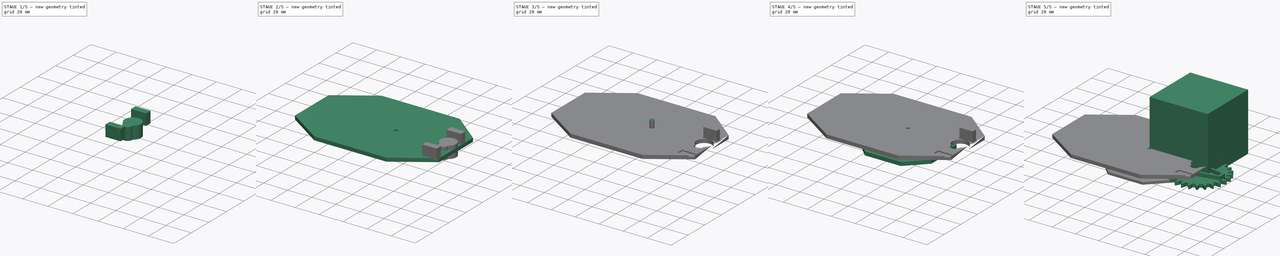
[diagram: build sequence overview — one tinted view per stage of 5, left to right]
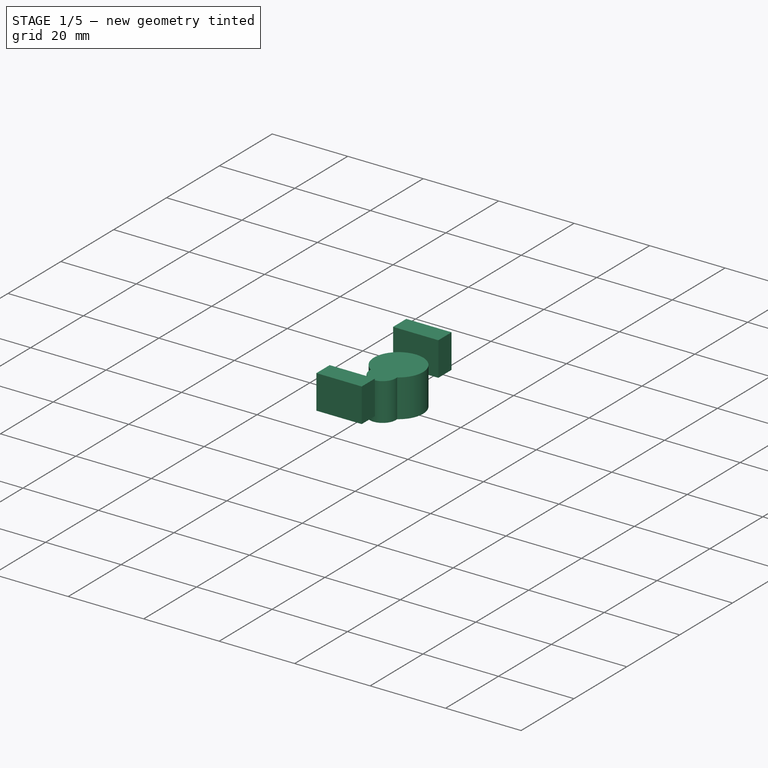
[diagram: stage 1 of 5 — iso view after this stage's code; geometry added in this stage tinted green]
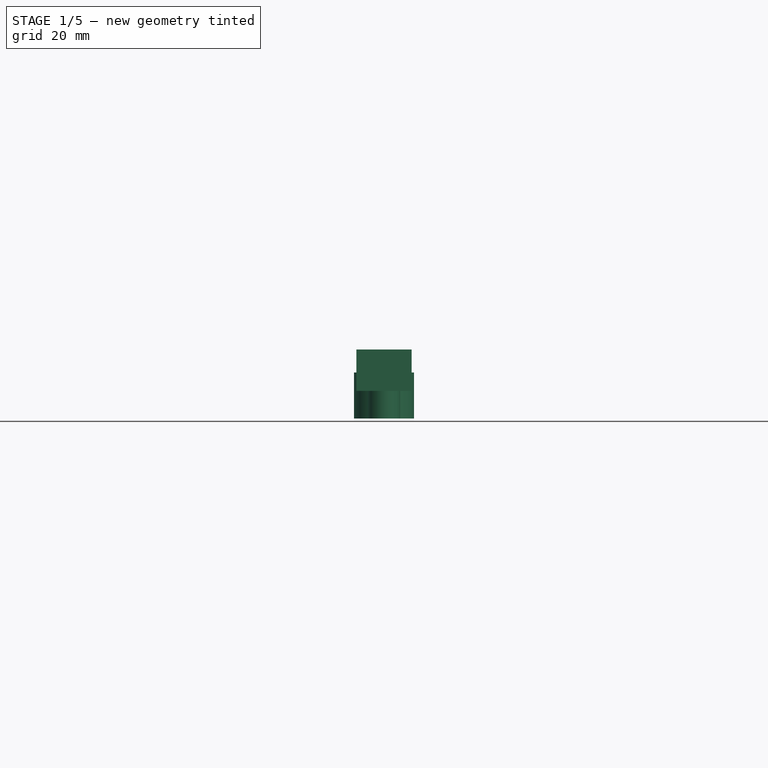
[diagram: stage 1 of 5 — front view after this stage's code; geometry added in this stage tinted green]
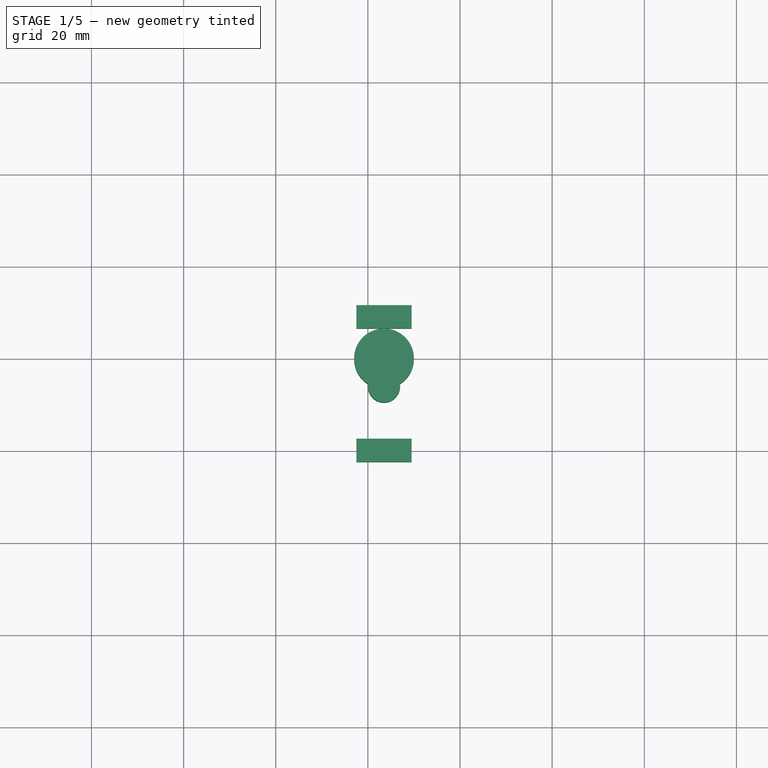
[diagram: stage 1 of 5 — top view after this stage's code; geometry added in this stage tinted green]
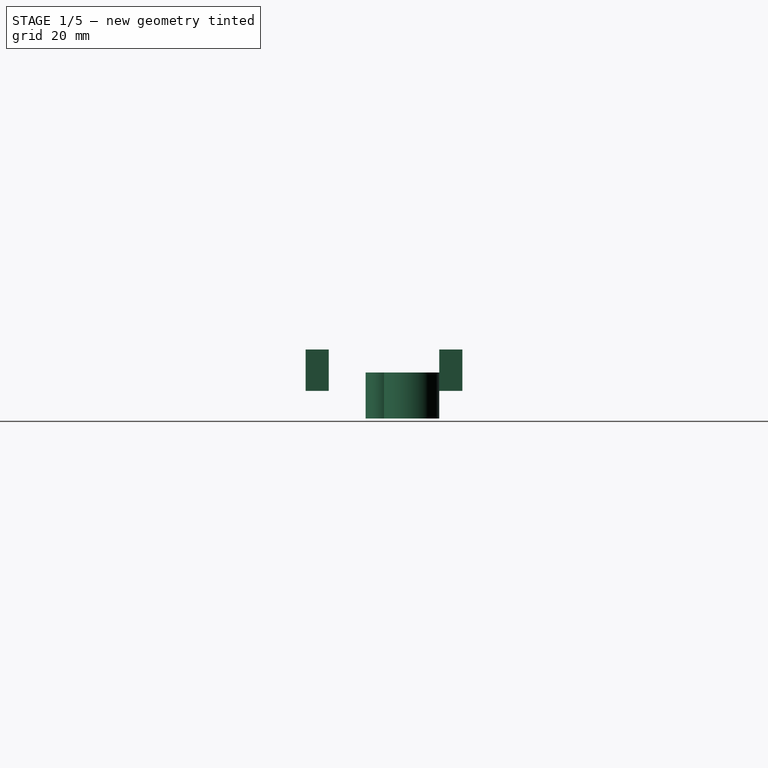
[diagram: stage 1 of 5 — right view after this stage's code; geometry added in this stage tinted green]
FCSTD DOCUMENT  (FreeCAD 0.14R3700 (Git))
Label: case
License: All rights reserved
LicenseURL: http://en.wikipedia.org/wiki/All_rights_reserved
objects: Part::Cylinder×8, Part::Cut×7, Part::MultiFuse×7, Part::Box×5, Sketcher::SketchObject×4, PartDesign::Pad×4, Part::FeaturePython×3, Part::Feature×2, Part::Chamfer×1
note: 45 computed .brp shape members not serialized (recipe doc carries the construction recipe); baked Part::Feature solids carry a one-line shape summary decoded from their .brp

FEATURE [Part::Cylinder] Cylinder006
  Angle = 360
  Height = 10
  Placement = pos=(43.5,0,3) rot=(0,0,1;0rad)
  Radius = 6.5
FEATURE [Part::Cylinder] Cylinder007
  Angle = 360
  Height = 10
  Placement = pos=(43.5,-6,3) rot=(0,0,1;0rad)
  Radius = 3.5
FEATURE [Part::MultiFuse] Fusion005
  Shapes = -> [Cylinder006,Cylinder007]
FEATURE [Part::Box] Box002  label="Cube002"
  Height = 9
  Length = 12
  Placement = pos=(37.5,6.5,9) rot=(0,0,1;0rad)
  Width = 5
FEATURE [Part::Box] Box003  label="Cube003"
  Height = 9
  Length = 12
  Placement = pos=(37.5,-22.5,9) rot=(0,0,1;0rad)
  Width = 5
FEATURE [Part::MultiFuse] Fusion006
  Shapes = -> [Box002,Box003]
FEATURE [Part::Box] Box004  label="servo-support"
  Height = 9
  Length = 11
  Placement = pos=(38,7,9) rot=(0,0,1;0rad)
  Width = 4
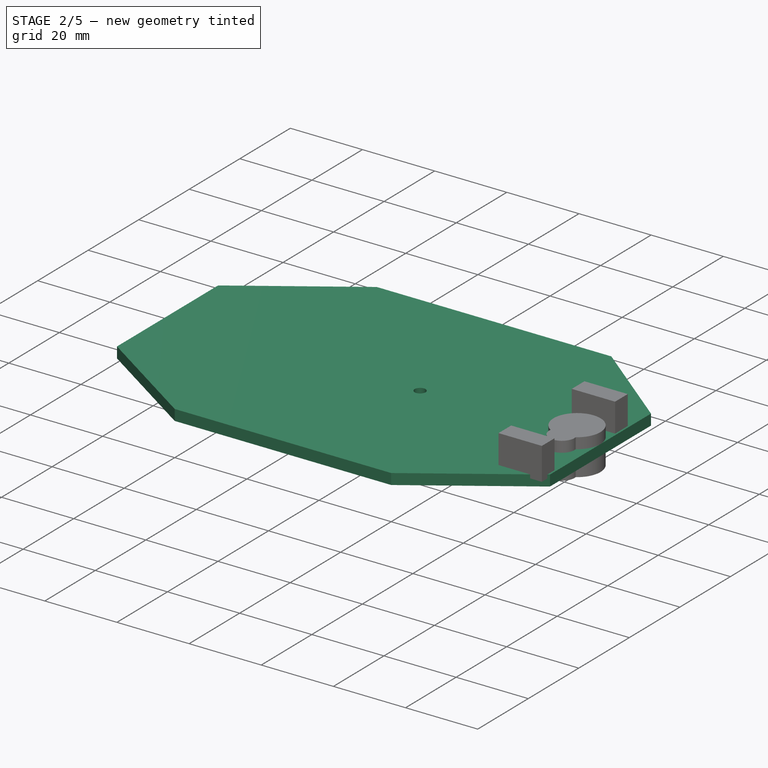
[diagram: stage 2 of 5 — iso view after this stage's code; geometry added in this stage tinted green]
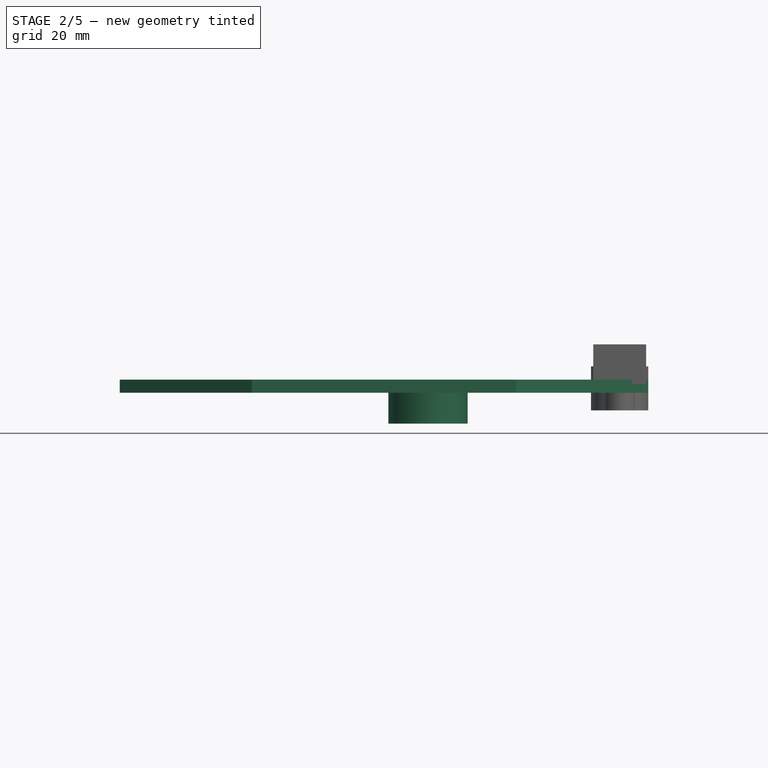
[diagram: stage 2 of 5 — front view after this stage's code; geometry added in this stage tinted green]
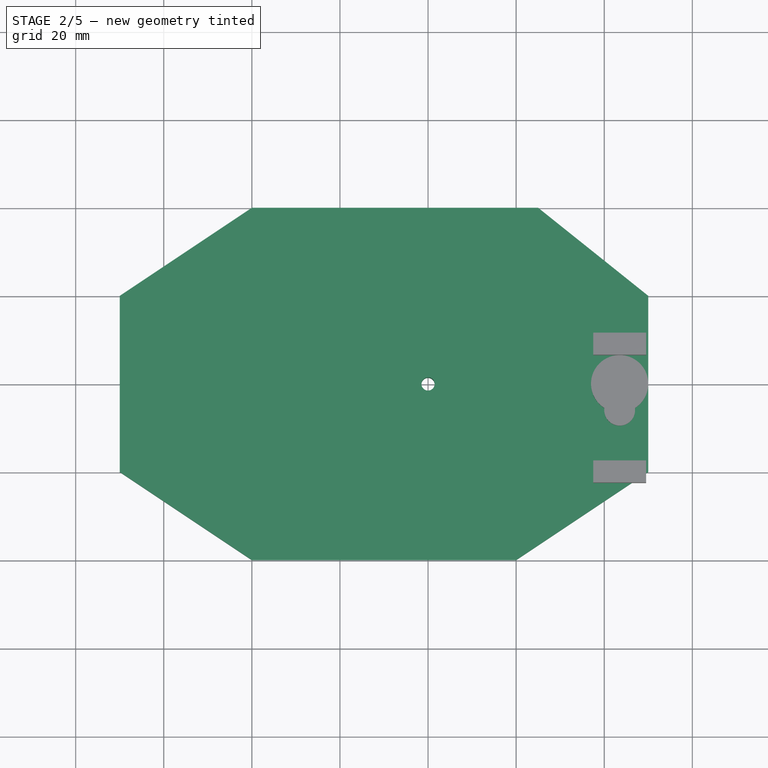
[diagram: stage 2 of 5 — top view after this stage's code; geometry added in this stage tinted green]
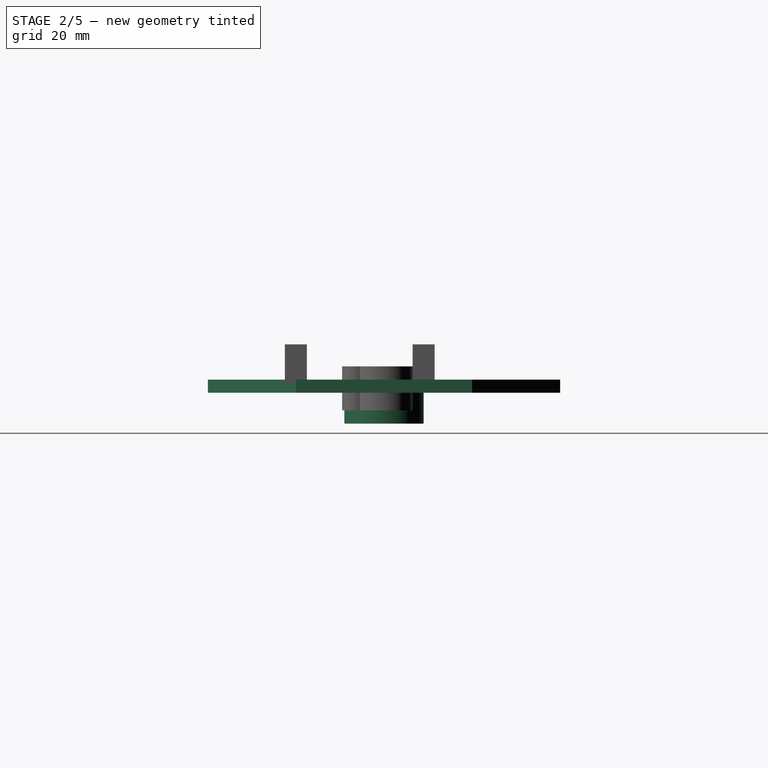
[diagram: stage 2 of 5 — right view after this stage's code; geometry added in this stage tinted green]
FEATURE [Sketcher::SketchObject] Sketch003
  Placement = pos=(-30,0,7) rot=(0,0,1;0rad)
  sketch-geometry (8):
    g0: LineSegment StartX=-40 StartY=20 StartZ=0 EndX=-10 EndY=40 EndZ=0
    g1: LineSegment StartX=-10 StartY=40 StartZ=0 EndX=55 EndY=40 EndZ=0
    g2: LineSegment StartX=55 StartY=40 StartZ=0 EndX=80 EndY=20 EndZ=0
    g3: LineSegment StartX=80 StartY=20 StartZ=0 EndX=80 EndY=-20 EndZ=0
    g4: LineSegment StartX=80 StartY=-20 StartZ=0 EndX=50 EndY=-40 EndZ=0
    g5: LineSegment StartX=50 StartY=-40 StartZ=0 EndX=-10 EndY=-40 EndZ=0
    g6: LineSegment StartX=-10 StartY=-40 StartZ=0 EndX=-40 EndY=-20 EndZ=0
    g7: LineSegment StartX=-40 StartY=-20 StartZ=0 EndX=-40 EndY=20 EndZ=0
  constraints (8):
    c: Coincident(g0,g1)
    c: Coincident(g1,g2)
    c: Coincident(g2,g3)
    c: Coincident(g3,g4)
    c: Coincident(g4,g5)
    c: Coincident(g5,g6)
    c: Coincident(g6,g7)
    c: Coincident(g7,g0)
FEATURE [PartDesign::Pad] Pad003
  Length = 3
  Length2 = 100
  Placement = pos=(-30,0,7) rot=(0,0,1;0rad)
  Sketch = -> Sketch003
  Type = 0
FEATURE [Part::Cylinder] Cylinder001
  Angle = 360
  Height = 9
  Radius = 9
FEATURE [Part::MultiFuse] Fusion003
  Shapes = -> [Cylinder001,Pad003]
FEATURE [Part::Cylinder] Cylinder005
  Angle = 360
  Height = 20
  Placement = pos=(0,0,-4) rot=(0,0,1;0rad)
  Radius = 1.5
FEATURE [Part::Cut] Cut004
  Base = -> Fusion003
  Tool = -> Cylinder005
FEATURE [Part::Box] Box001  label="Cube001"
  Height = 9
  Length = 11
  Placement = pos=(38,7,9) rot=(0,0,1;0rad)
  Width = 4
FEATURE [Part::FeaturePython] Clone001  label="Clone of Cube001"  # Draft clone (typed FeaturePython)
  Objects = -> [Box001]
  Placement = pos=(38,-22,9) rot=(0,0,1;0rad)
  Scale = (1,1,1)
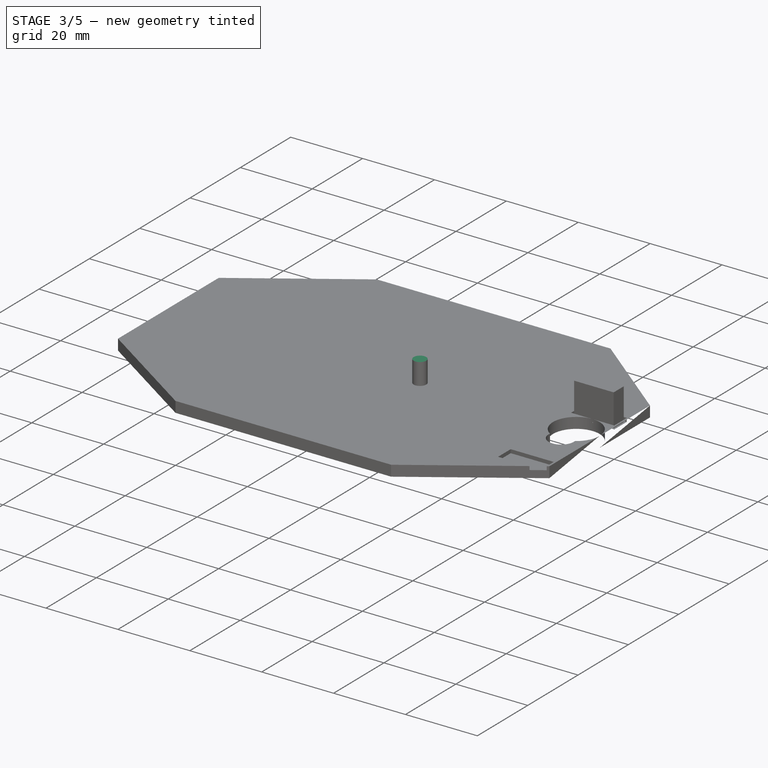
[diagram: stage 3 of 5 — iso view after this stage's code; geometry added in this stage tinted green]
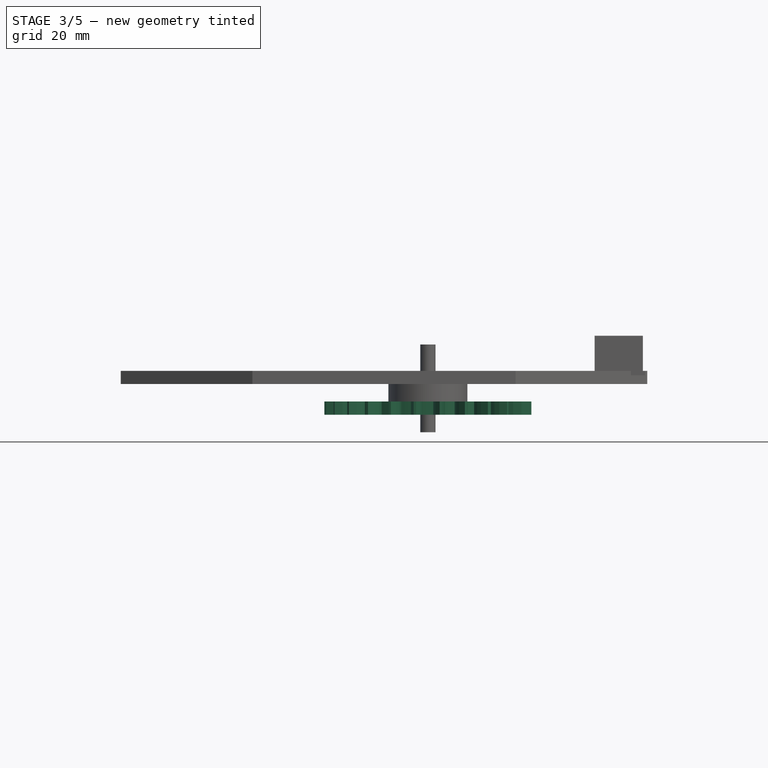
[diagram: stage 3 of 5 — front view after this stage's code; geometry added in this stage tinted green]
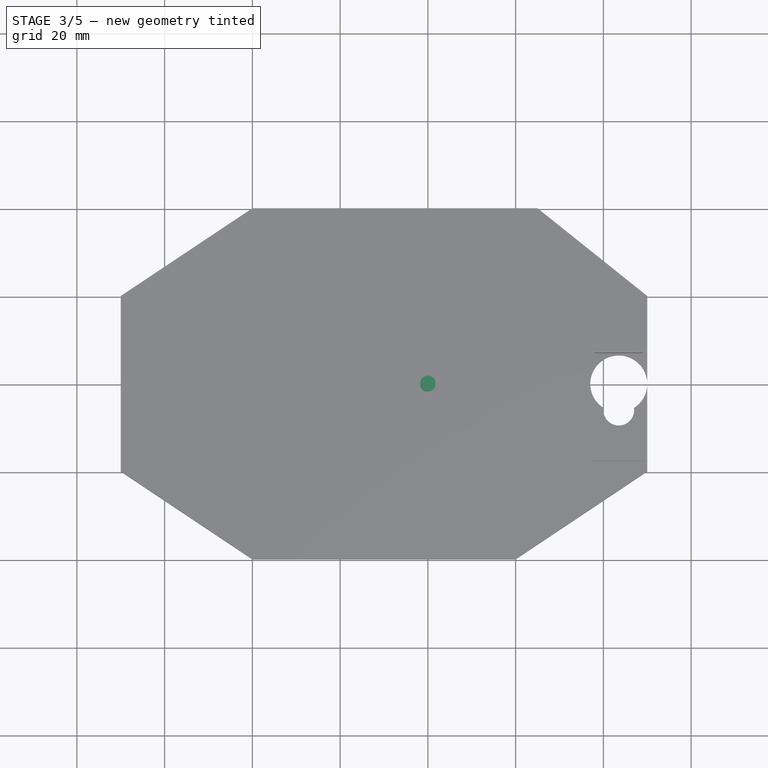
[diagram: stage 3 of 5 — top view after this stage's code; geometry added in this stage tinted green]
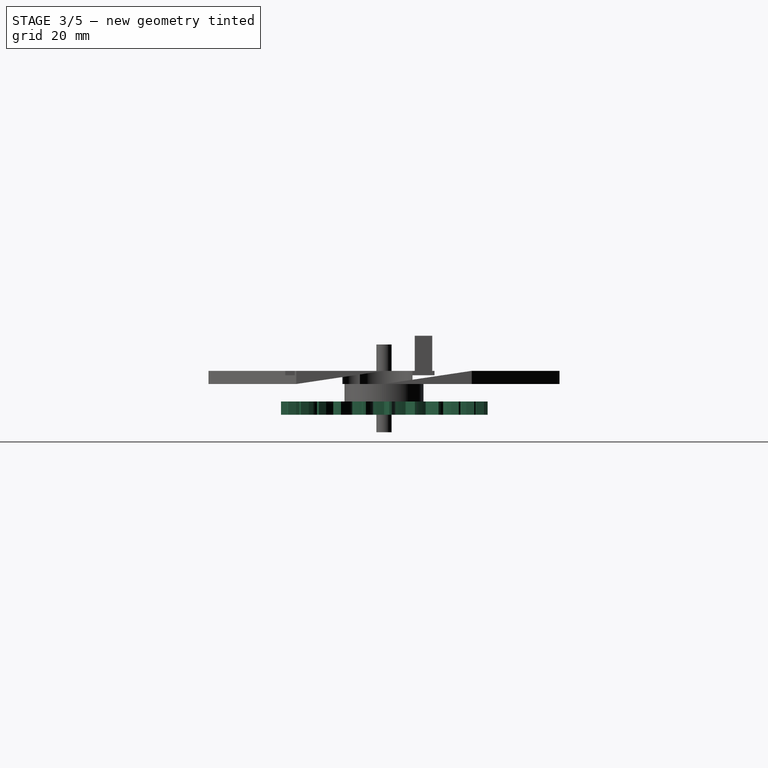
[diagram: stage 3 of 5 — right view after this stage's code; geometry added in this stage tinted green]
FEATURE [Part::FeaturePython] Gear  # WARN: FeaturePython — macro-defined, semantics opaque (R4)
  CenterRadius = 20
  GearHeight = 3
  LevelOfDetail = 3
  Module = 1.75
  NumberTeeth = 25
  PressureAngle = 20
  Verbose = true
FEATURE [Part::Cylinder] Cylinder
  Angle = 360
  Height = 10
  Placement = pos=(0,0,-2) rot=(0,0,1;0rad)
  Radius = 10
FEATURE [Part::Cut] Cut001
  Base = -> Gear
  Tool = -> Cylinder
FEATURE [Part::Cylinder] Cylinder004
  Angle = 360
  Height = 20
  Placement = pos=(0,0,-4) rot=(0,0,1;0rad)
  Radius = 1.75
FEATURE [Part::MultiFuse] Fusion004
  Shapes = -> [Cut004,Box001,Clone001]
FEATURE [Part::Cut] Cut005  label="top-panel"
  Base = -> Fusion004
  Tool = -> Fusion005
FEATURE [Part::Cut] Cut006  label="top-panel001"
  Base = -> Cut005
  Tool = -> Fusion006
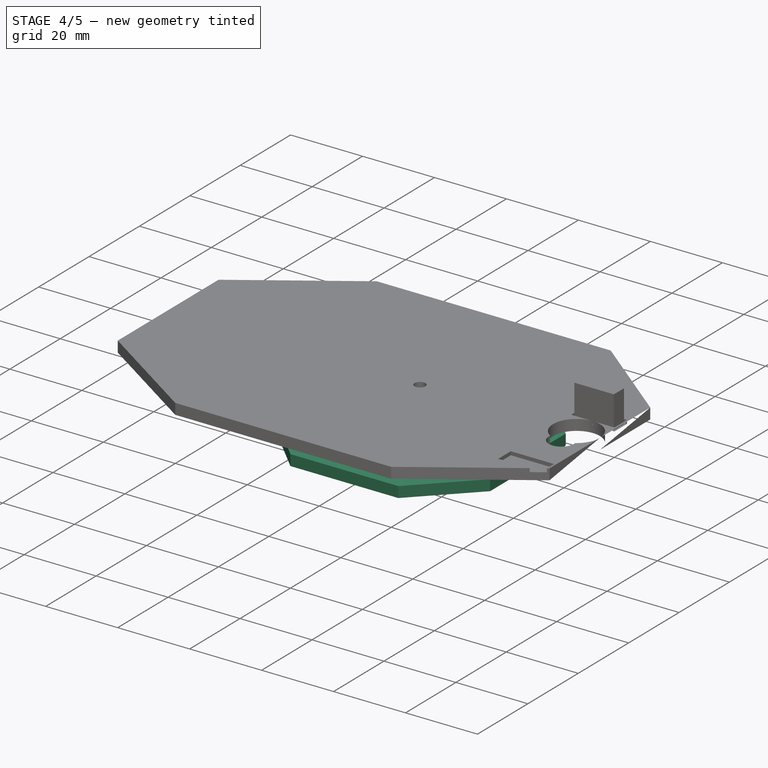
[diagram: stage 4 of 5 — iso view after this stage's code; geometry added in this stage tinted green]
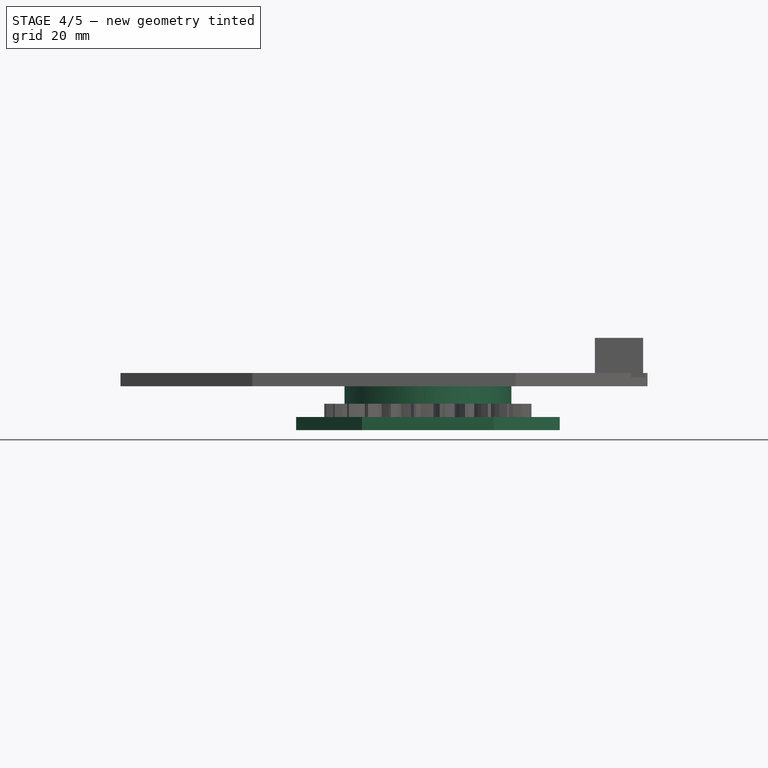
[diagram: stage 4 of 5 — front view after this stage's code; geometry added in this stage tinted green]
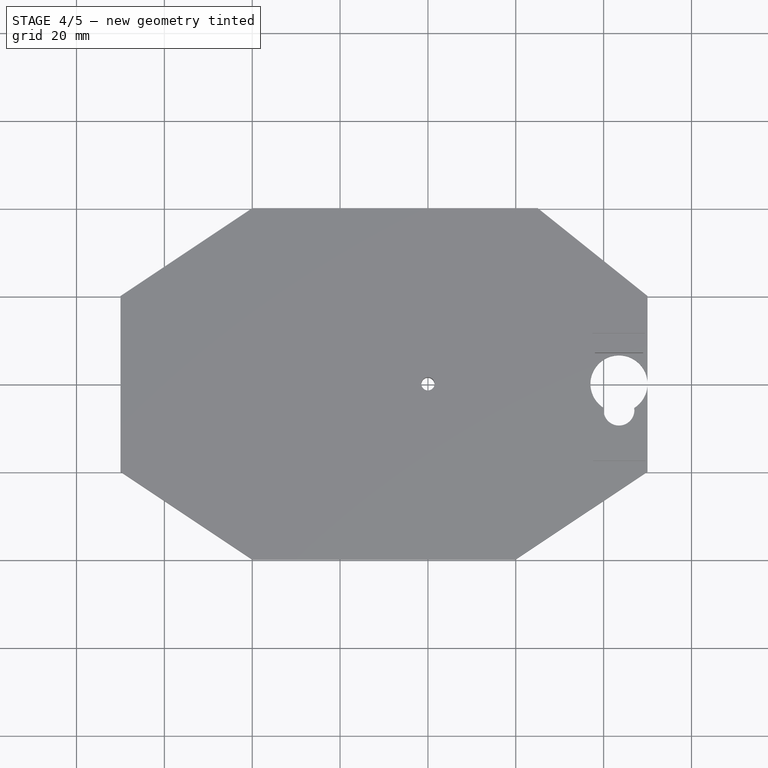
[diagram: stage 4 of 5 — top view after this stage's code; geometry added in this stage tinted green]
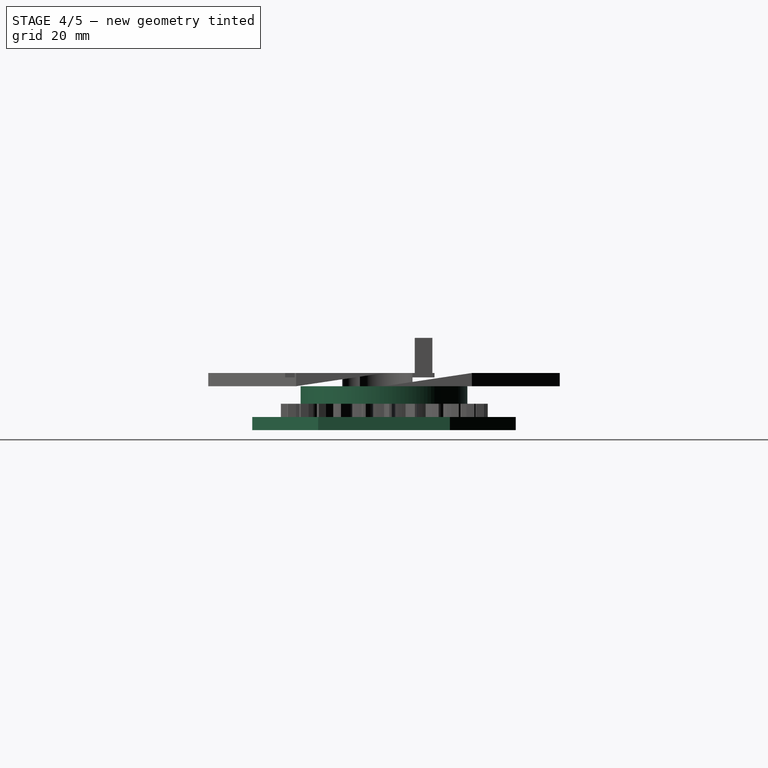
[diagram: stage 4 of 5 — right view after this stage's code; geometry added in this stage tinted green]
FEATURE [Part::Feature] Part__Feature002  label="hxt900"
  Placement = pos=(43.5,-5.5,20) rot=(0.707107,0.707107,0;3.14159rad)
  shape: bbox 12 x 32.69 x 29.96 mm, 44 faces (baked)
FEATURE [Sketcher::SketchObject] Sketch002
  Placement = pos=(0,0,-3) rot=(0,0,1;0rad)
  sketch-geometry (8):
    g0: LineSegment StartX=-15 StartY=30 StartZ=0 EndX=15 EndY=30 EndZ=0
    g1: LineSegment StartX=15 StartY=30 StartZ=0 EndX=30 EndY=15 EndZ=0
    g2: LineSegment StartX=30 StartY=15 StartZ=0 EndX=30 EndY=-15 EndZ=0
    g3: LineSegment StartX=30 StartY=-15 StartZ=0 EndX=15 EndY=-30 EndZ=0
    g4: LineSegment StartX=15 StartY=-30 StartZ=0 EndX=-15 EndY=-30 EndZ=0
    g5: LineSegment StartX=-15 StartY=-30 StartZ=0 EndX=-30 EndY=-15 EndZ=0
    g6: LineSegment StartX=-30 StartY=-15 StartZ=0 EndX=-30 EndY=15 EndZ=0
    g7: LineSegment StartX=-30 StartY=15 StartZ=0 EndX=-15 EndY=30 EndZ=0
  constraints (8):
    c: Coincident(g0,g1)
    c: Coincident(g1,g2)
    c: Coincident(g2,g3)
    c: Coincident(g3,g4)
    c: Coincident(g4,g5)
    c: Coincident(g5,g6)
    c: Coincident(g6,g7)
    c: Coincident(g7,g0)
FEATURE [PartDesign::Pad] Pad002
  Length = 3
  Length2 = 100
  Placement = pos=(0,0,-3) rot=(0,0,1;0rad)
  Sketch = -> Sketch002
  Type = 0
FEATURE [Part::Cylinder] Cylinder002
  Angle = 360
  Height = 7
  Radius = 19
FEATURE [Part::Cylinder] Cylinder003
  Angle = 360
  Height = 7
  Radius = 17
FEATURE [Part::Cut] Cut002
  Base = -> Cylinder002
  Tool = -> Cylinder003
FEATURE [Part::MultiFuse] Fusion001
  Shapes = -> [Pad002,Cut001]
FEATURE [Part::MultiFuse] Fusion002
  Shapes = -> [Fusion001,Cut002]
FEATURE [Part::Cut] Cut003
  Base = -> Fusion002
  Tool = -> Cylinder004
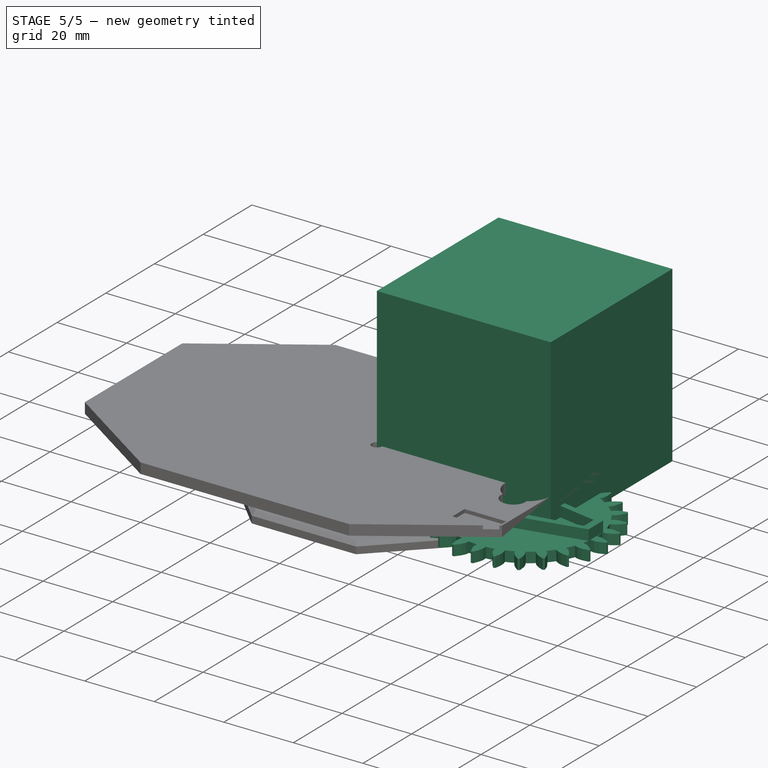
[diagram: stage 5 of 5 — iso view after this stage's code; geometry added in this stage tinted green]
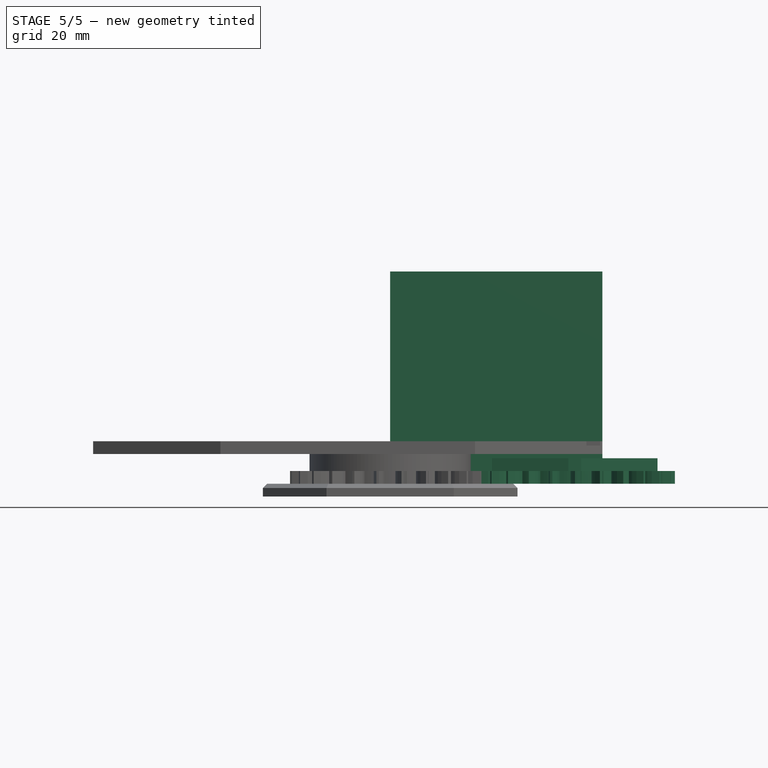
[diagram: stage 5 of 5 — front view after this stage's code; geometry added in this stage tinted green]
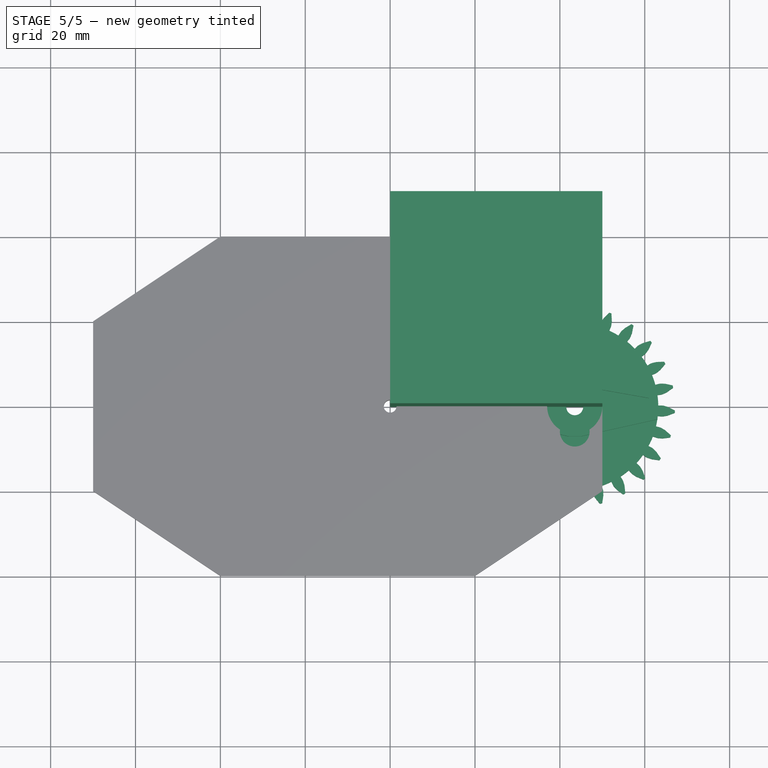
[diagram: stage 5 of 5 — top view after this stage's code; geometry added in this stage tinted green]
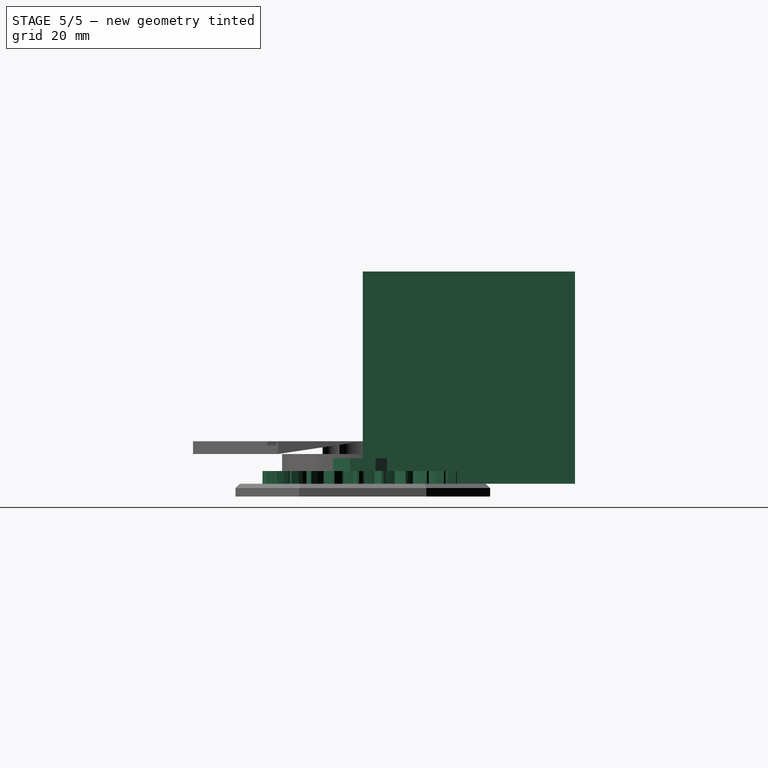
[diagram: stage 5 of 5 — right view after this stage's code; geometry added in this stage tinted green]
FEATURE [Part::Box] Box  label="Cube"
  Height = 50
  Length = 50
  Width = 50
FEATURE [Part::FeaturePython] Clone  label="Clone of Gear"  # Draft clone (typed FeaturePython)
  Objects = -> [Gear]
  Placement = pos=(43.5,0,0) rot=(0,0,1;0.139626rad)
  Scale = (1,1,1)
FEATURE [Part::Feature] Part__Feature  label="servo-arm"
  Placement = pos=(43.5,0,4) rot=(0,0,1;0rad)
  shape: bbox 34 x 8 x 5 mm, 17 faces (baked)
FEATURE [Sketcher::SketchObject] Sketch
  Placement = pos=(0,0,3) rot=(0,0,1;0rad)
  sketch-geometry (8):
    g0: LineSegment StartX=44 StartY=5 StartZ=0 EndX=61 EndY=2 EndZ=0
    g1: LineSegment StartX=61 StartY=2 StartZ=0 EndX=61 EndY=-2 EndZ=0
    g2: LineSegment StartX=61 StartY=-2 StartZ=0 EndX=44 EndY=-5 EndZ=0
    g3: LineSegment StartX=44 StartY=-5 StartZ=0 EndX=43 EndY=-5 EndZ=0
    g4: LineSegment StartX=43 StartY=-5 StartZ=0 EndX=26 EndY=-2 EndZ=0
    g5: LineSegment StartX=26 StartY=-2 StartZ=0 EndX=26 EndY=2 EndZ=0
    g6: LineSegment StartX=26 StartY=2 StartZ=0 EndX=43 EndY=5 EndZ=0
    g7: LineSegment StartX=43 StartY=5 StartZ=0 EndX=44 EndY=5 EndZ=0
  constraints (8):
    c: Coincident(g0,g1)
    c: Coincident(g1,g2)
    c: Coincident(g2,g3)
    c: Coincident(g3,g4)
    c: Coincident(g4,g5)
    c: Coincident(g5,g6)
    c: Coincident(g6,g7)
    c: Coincident(g0,g7)
FEATURE [PartDesign::Pad] Pad
  Length = 10
  Length2 = 100
  Placement = pos=(0,0,3) rot=(0,0,1;0rad)
  Sketch = -> Sketch
  Type = 0
FEATURE [Sketcher::SketchObject] Sketch001
  Placement = pos=(0,0,3) rot=(0,0,1;0rad)
  sketch-geometry (8):
    g0: LineSegment StartX=44 StartY=7 StartZ=0 EndX=63 EndY=3 EndZ=0
    g1: LineSegment StartX=63 StartY=3 StartZ=0 EndX=63 EndY=-3 EndZ=0
    g2: LineSegment StartX=63 StartY=-3 StartZ=0 EndX=45 EndY=-7 EndZ=0
    g3: LineSegment StartX=45 StartY=-7 StartZ=0 EndX=42 EndY=-7 EndZ=0
    g4: LineSegment StartX=42 StartY=-7 StartZ=0 EndX=24 EndY=-3 EndZ=0
    g5: LineSegment StartX=24 StartY=-3 StartZ=0 EndX=24 EndY=3 EndZ=0
    g6: LineSegment StartX=24 StartY=3 StartZ=0 EndX=42 EndY=7 EndZ=0
    g7: LineSegment StartX=42 StartY=7 StartZ=0 EndX=44 EndY=7 EndZ=0
  constraints (8):
    c: Coincident(g0,g1)
    c: Coincident(g1,g2)
    c: Coincident(g2,g3)
    c: Coincident(g3,g4)
    c: Coincident(g4,g5)
    c: Coincident(g5,g6)
    c: Coincident(g6,g7)
    c: Coincident(g7,g0)
FEATURE [PartDesign::Pad] Pad001
  Length = 3
  Length2 = 100
  Placement = pos=(0,0,3) rot=(0,0,1;0rad)
  Sketch = -> Sketch001
  Type = 0
FEATURE [Part::Cut] Cut
  Base = -> Pad001
  Tool = -> Pad
FEATURE [Part::MultiFuse] Fusion  label="moving-gear"
  Shapes = -> [Clone,Cut]
FEATURE [Part::Chamfer] Chamfer  label="bottom-panel"
  Base = -> Cut003
  Edges = 8 edges r=1: [Edge4,Edge7,Edge10,Edge17,Edge18,Edge19,Edge20,Edge21]
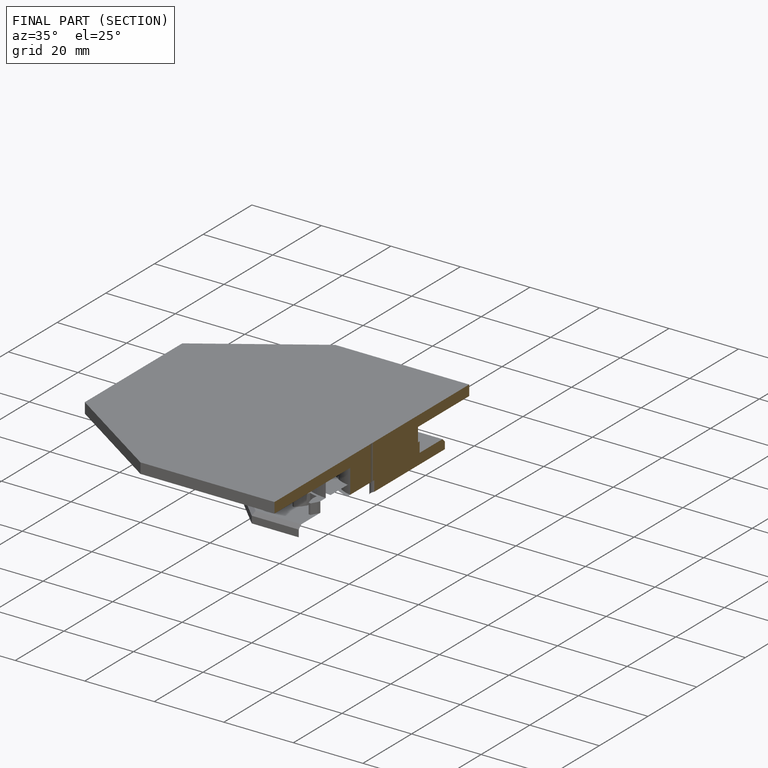
[diagram: finished part — half-section view (interior)]
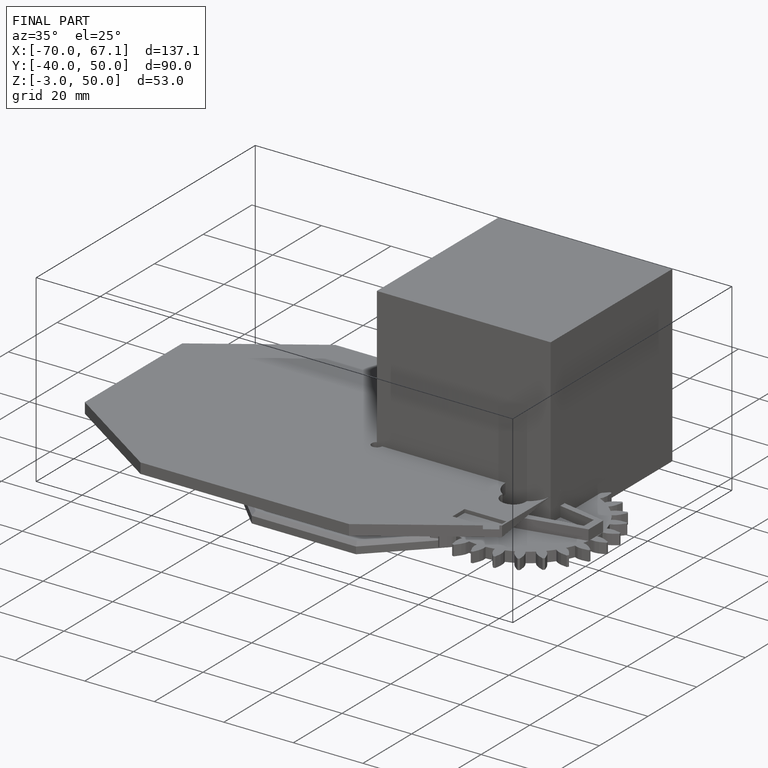
[diagram: finished part — iso view with bounding-box wireframe]
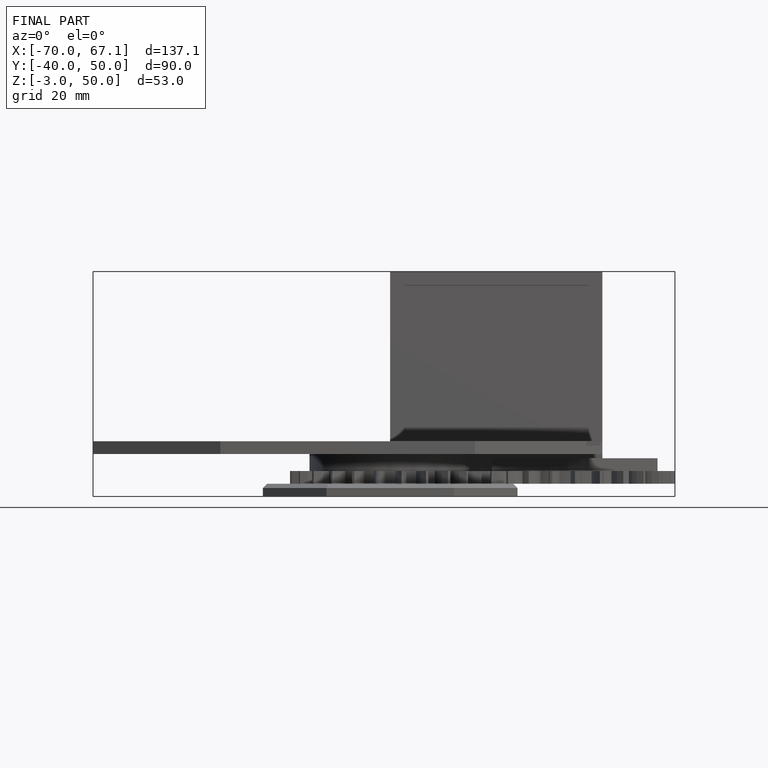
[diagram: finished part — front view with bounding-box wireframe]
